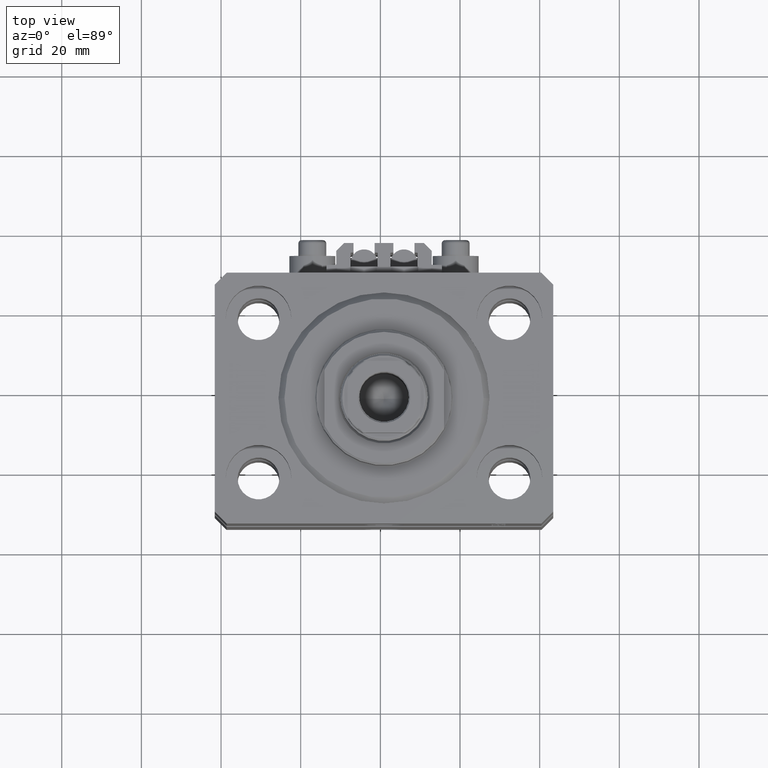
[diagram: clean part render]
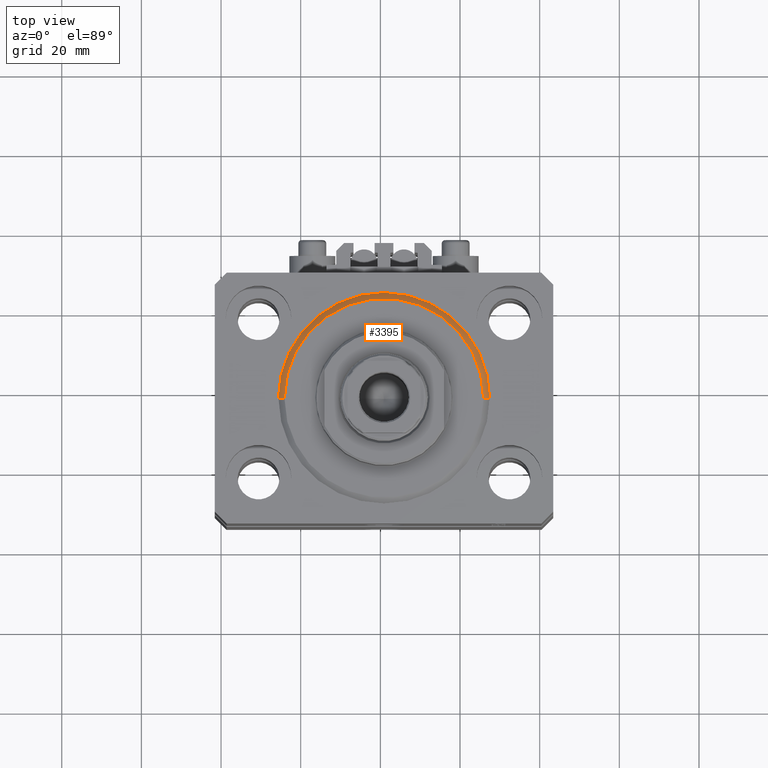
[diagram: same view with one face highlighted and labeled with its STEP entity id]
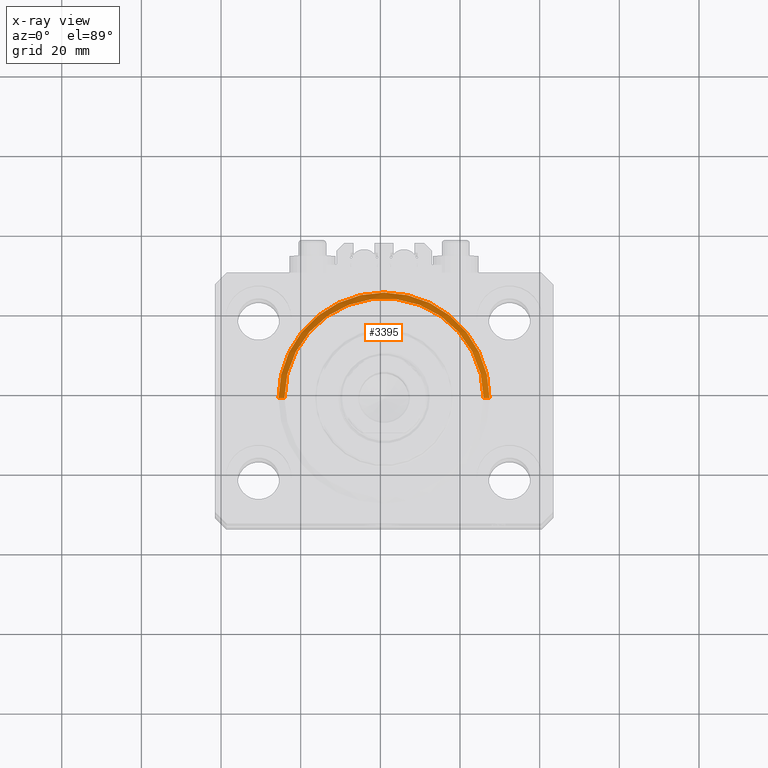
[diagram: x-ray of the same camera — body ghosted, the highlighted face saturated]
A machine part, top view. The second image highlights one B-rep face of the part: STEP entity #3395.
The next image is the same camera in x-ray: the body ghosted, the highlighted face saturated — about 0% of this face is hidden behind the body in this view.
In plain terms, the highlighted conical surface has half-angle 45 deg.
Its self-contained STEP definition (entity closure, byte-faithful):
#640 = VECTOR ( 'NONE', #38684, 1000.000000000000000 ) ;
#2380 = EDGE_LOOP ( 'NONE', ( #40082, #44159, #11758, #9994 ) ) ;
#3395 = ADVANCED_FACE ( 'NONE', ( #10121 ), #36600, .T. ) ;
#5527 = CARTESIAN_POINT ( 'NONE',  ( 26.50000000000000355, 3.245314017740486554E-15, 1.500000000000018652 ) ) ;
#6408 = VERTEX_POINT ( 'NONE', #5527 ) ;
#6532 = AXIS2_PLACEMENT_3D ( 'NONE', #26431, #15277, #26177 ) ;
#8026 = EDGE_CURVE ( 'NONE', #37755, #6408, #18061, .T. ) ;
#9468 = DIRECTION ( 'NONE',  ( 1.000000000000000000, 0.000000000000000000, 0.000000000000000000 ) ) ;
#9994 = ORIENTED_EDGE ( 'NONE', *, *, #8026, .F. ) ;
#10121 = FACE_OUTER_BOUND ( 'NONE', #2380, .T. ) ;
#11758 = ORIENTED_EDGE ( 'NONE', *, *, #23894, .F. ) ;
#12912 = CARTESIAN_POINT ( 'NONE',  ( -26.50000000000000355, 3.245314017740486554E-15, 1.500000000000018652 ) ) ;
#13097 = CARTESIAN_POINT ( 'NONE',  ( 0.000000000000000000, 0.000000000000000000, 1.500000000000018652 ) ) ;
#13343 = DIRECTION ( 'NONE',  ( 1.000000000000000000, 0.000000000000000000, 0.000000000000000000 ) ) ;
#14081 = DIRECTION ( 'NONE',  ( -0.000000000000000000, -0.000000000000000000, 1.000000000000000000 ) ) ;
#14211 = VERTEX_POINT ( 'NONE', #43821 ) ;
#14565 = CIRCLE ( 'NONE', #43050, 24.99999999999998224 ) ;
#15277 = DIRECTION ( 'NONE',  ( -0.000000000000000000, -0.000000000000000000, 1.000000000000000000 ) ) ;
#16716 = EDGE_CURVE ( 'NONE', #14211, #36645, #45871, .T. ) ;
#18061 = LINE ( 'NONE', #33156, #46950 ) ;
#23894 = EDGE_CURVE ( 'NONE', #6408, #36645, #25480, .T. ) ;
#24203 = CARTESIAN_POINT ( 'NONE',  ( 24.99999999999998224, 0.000000000000000000, 0.000000000000000000 ) ) ;
#25256 = DIRECTION ( 'NONE',  ( 0.7071067811865483499, 0.000000000000000000, 0.7071067811865466846 ) ) ;
#25480 = CIRCLE ( 'NONE', #6532, 26.50000000000000355 ) ;
#26177 = DIRECTION ( 'NONE',  ( 1.000000000000000000, 0.000000000000000000, 0.000000000000000000 ) ) ;
#26431 = CARTESIAN_POINT ( 'NONE',  ( 0.000000000000000000, 0.000000000000000000, 1.500000000000018652 ) ) ;
#27895 = AXIS2_PLACEMENT_3D ( 'NONE', #13097, #14081, #13343 ) ;
#28040 = DIRECTION ( 'NONE',  ( -0.000000000000000000, -0.000000000000000000, -1.000000000000000000 ) ) ;
#30935 = EDGE_CURVE ( 'NONE', #14211, #37755, #14565, .T. ) ;
#31504 = CARTESIAN_POINT ( 'NONE',  ( 0.000000000000000000, 0.000000000000000000, 0.000000000000000000 ) ) ;
#33156 = CARTESIAN_POINT ( 'NONE',  ( 26.50000000000000355, 0.000000000000000000, 1.500000000000018652 ) ) ;
#35032 = CARTESIAN_POINT ( 'NONE',  ( -26.50000000000000355, 0.000000000000000000, 1.500000000000018652 ) ) ;
#36600 = CONICAL_SURFACE ( 'NONE', #27895, 26.50000000000000355, 0.7853981633974495002 ) ;
#36645 = VERTEX_POINT ( 'NONE', #35032 ) ;
#37755 = VERTEX_POINT ( 'NONE', #24203 ) ;
#38684 = DIRECTION ( 'NONE',  ( -0.7071067811865483499, 8.659560562354942719E-17, 0.7071067811865466846 ) ) ;
#40082 = ORIENTED_EDGE ( 'NONE', *, *, #30935, .F. ) ;
#43050 = AXIS2_PLACEMENT_3D ( 'NONE', #31504, #28040, #9468 ) ;
#43821 = CARTESIAN_POINT ( 'NONE',  ( -24.99999999999998224, 3.153465507804433615E-15, 0.000000000000000000 ) ) ;
#44159 = ORIENTED_EDGE ( 'NONE', *, *, #16716, .T. ) ;
#45871 = LINE ( 'NONE', #12912, #640 ) ;
#46950 = VECTOR ( 'NONE', #25256, 1000.000000000000000 ) ;